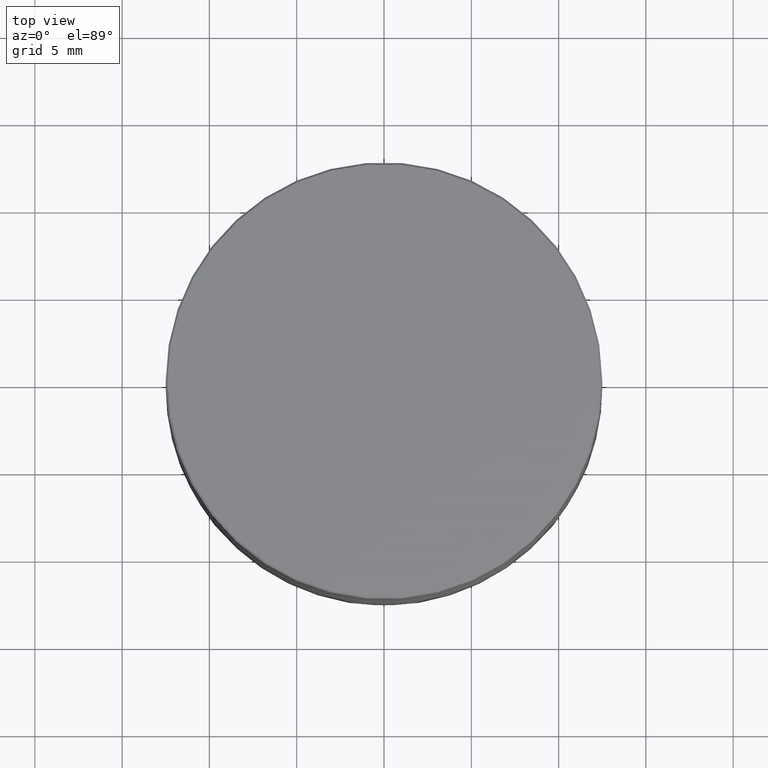
[diagram: clean part render]
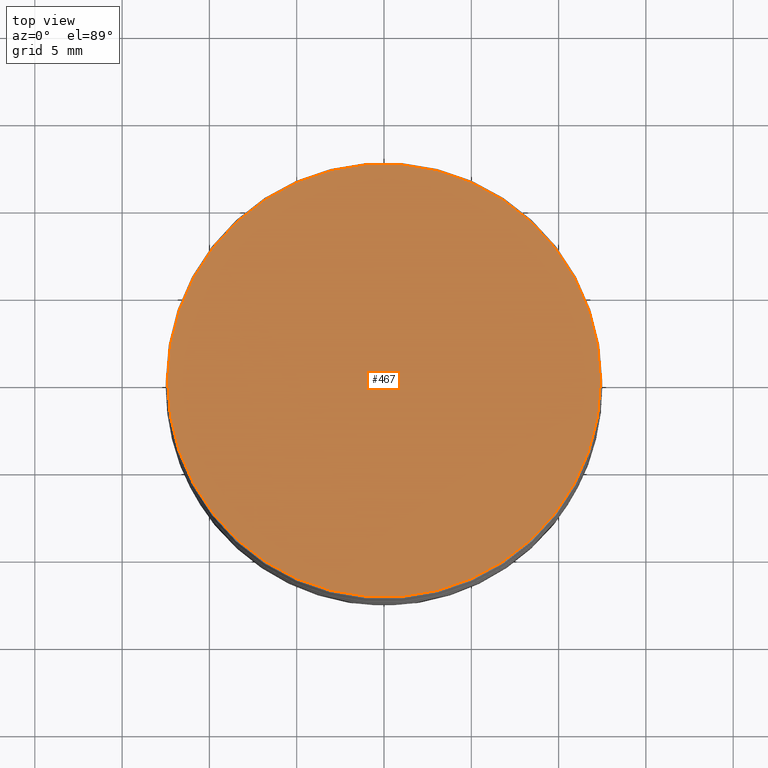
[diagram: same view with one face highlighted and labeled with its STEP entity id]
A machine part, top view. The second image highlights one B-rep face of the part: STEP entity #467.
In plain terms, the highlighted planar face has unit normal (0, -0, 1).
Its self-contained STEP definition (entity closure, byte-faithful):
#119 = DIRECTION ( 'NONE',  ( 0.000000000000000000, -0.000000000000000000, 1.000000000000000000 ) ) ;
#137 = DIRECTION ( 'NONE',  ( 1.000000000000000000, 0.000000000000000000, 0.000000000000000000 ) ) ;
#205 = CIRCLE ( 'NONE', #1134, 12.39999999999999503 ) ;
#225 = FACE_OUTER_BOUND ( 'NONE', #1280, .T. ) ;
#229 = ORIENTED_EDGE ( 'NONE', *, *, #587, .T. ) ;
#244 = VERTEX_POINT ( 'NONE', #1131 ) ;
#388 = PLANE ( 'NONE',  #401 ) ;
#401 = AXIS2_PLACEMENT_3D ( 'NONE', #753, #119, #1255 ) ;
#467 = ADVANCED_FACE ( 'NONE', ( #225 ), #388, .T. ) ;
#509 = EDGE_CURVE ( 'NONE', #769, #244, #205, .T. ) ;
#587 = EDGE_CURVE ( 'NONE', #244, #769, #1327, .T. ) ;
#746 = DIRECTION ( 'NONE',  ( -0.000000000000000000, -0.000000000000000000, 1.000000000000000000 ) ) ;
#753 = CARTESIAN_POINT ( 'NONE',  ( 0.000000000000000000, 0.000000000000000000, 0.000000000000000000 ) ) ;
#763 = DIRECTION ( 'NONE',  ( 1.000000000000000000, 0.000000000000000000, 0.000000000000000000 ) ) ;
#769 = VERTEX_POINT ( 'NONE', #815 ) ;
#770 = CARTESIAN_POINT ( 'NONE',  ( 0.000000000000000000, 0.000000000000000000, 0.000000000000000000 ) ) ;
#781 = ORIENTED_EDGE ( 'NONE', *, *, #509, .T. ) ;
#815 = CARTESIAN_POINT ( 'NONE',  ( -12.39999999999999503, 0.000000000000000000, 0.000000000000000000 ) ) ;
#980 = AXIS2_PLACEMENT_3D ( 'NONE', #770, #1293, #137 ) ;
#1131 = CARTESIAN_POINT ( 'NONE',  ( 12.39999999999999503, 1.524685264938454448E-15, 0.000000000000000000 ) ) ;
#1134 = AXIS2_PLACEMENT_3D ( 'NONE', #1240, #746, #763 ) ;
#1240 = CARTESIAN_POINT ( 'NONE',  ( 0.000000000000000000, 0.000000000000000000, 0.000000000000000000 ) ) ;
#1255 = DIRECTION ( 'NONE',  ( 1.000000000000000000, 0.000000000000000000, 0.000000000000000000 ) ) ;
#1280 = EDGE_LOOP ( 'NONE', ( #781, #229 ) ) ;
#1293 = DIRECTION ( 'NONE',  ( -0.000000000000000000, -0.000000000000000000, 1.000000000000000000 ) ) ;
#1327 = CIRCLE ( 'NONE', #980, 12.39999999999999503 ) ;